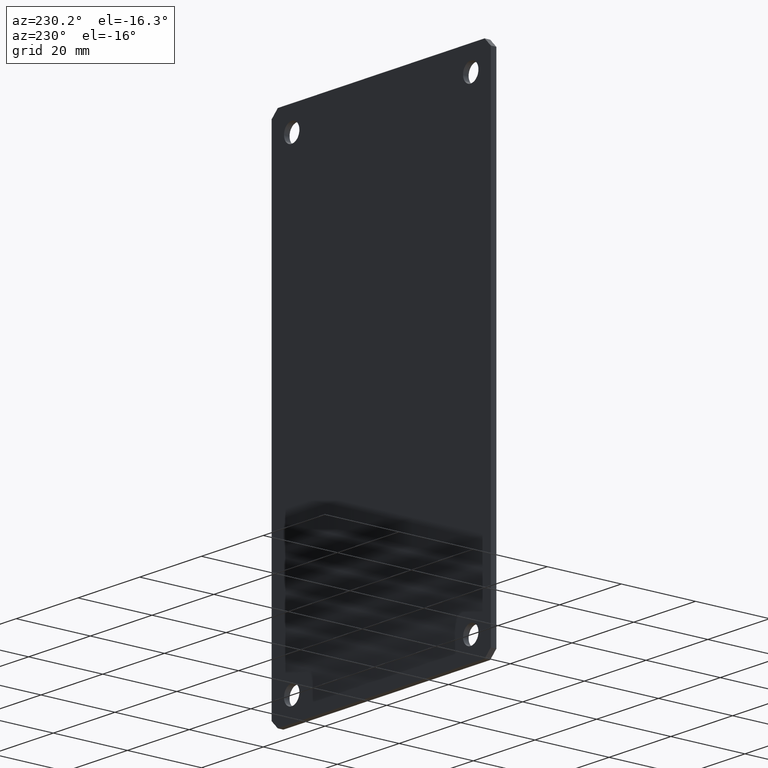
[diagram: clean part render]
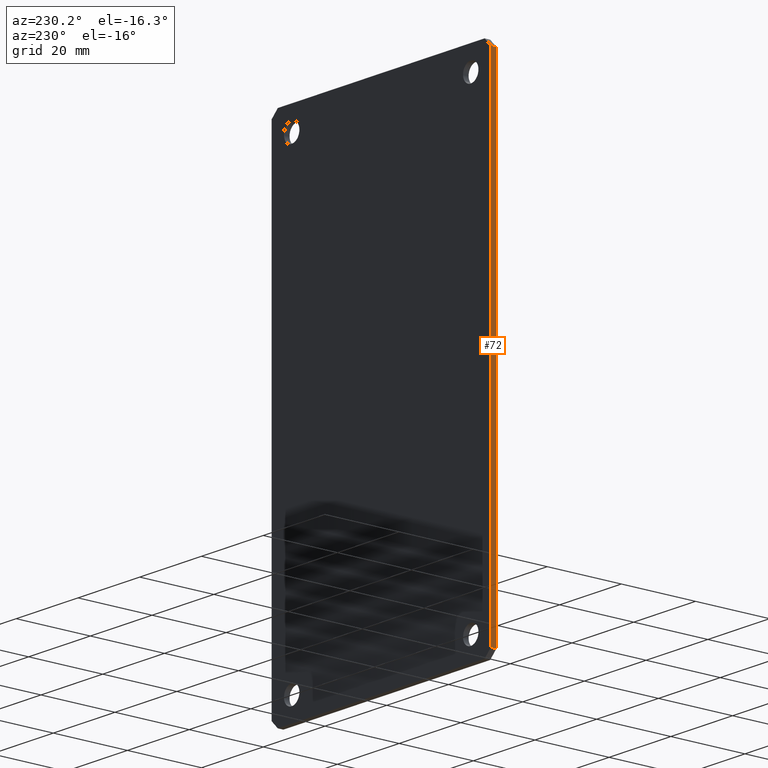
[diagram: same view with one face highlighted and labeled with its STEP entity id]
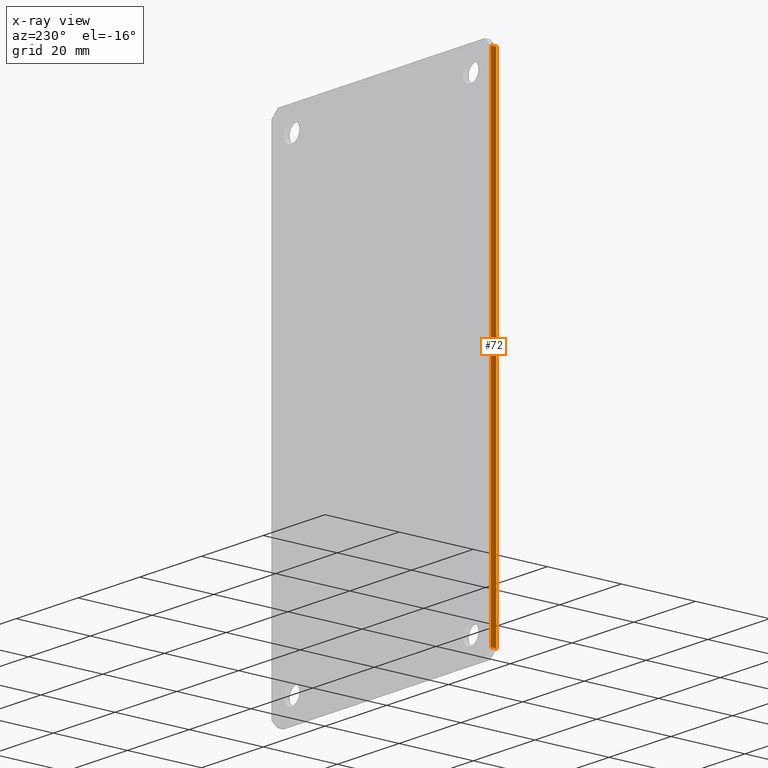
[diagram: x-ray of the same camera — body ghosted, the highlighted face saturated]
A machine part, auxiliary view. The second image highlights one B-rep face of the part: STEP entity #72.
The next image is the same camera in x-ray: the body ghosted, the highlighted face saturated — about 0% of this face is hidden behind the body in this view.
In plain terms, the highlighted planar face has unit normal (1, -0, 0).
Its self-contained STEP definition (entity closure, byte-faithful):
#5 = VERTEX_POINT ( 'NONE', #231 ) ;
#50 = VERTEX_POINT ( 'NONE', #329 ) ;
#63 = EDGE_CURVE ( 'NONE', #113, #5, #260, .T. ) ;
#72 = ADVANCED_FACE ( 'NONE', ( #435 ), #411, .F. ) ;
#73 = EDGE_LOOP ( 'NONE', ( #74, #75, #77, #78 ) ) ;
#74 = ORIENTED_EDGE ( 'NONE', *, *, #140, .T. ) ;
#75 = ORIENTED_EDGE ( 'NONE', *, *, #76, .F. ) ;
#76 = EDGE_CURVE ( 'NONE', #116, #50, #409, .T. ) ;
#77 = ORIENTED_EDGE ( 'NONE', *, *, #115, .F. ) ;
#78 = ORIENTED_EDGE ( 'NONE', *, *, #63, .T. ) ;
#113 = VERTEX_POINT ( 'NONE', #424 ) ;
#115 = EDGE_CURVE ( 'NONE', #113, #116, #348, .T. ) ;
#116 = VERTEX_POINT ( 'NONE', #344 ) ;
#140 = EDGE_CURVE ( 'NONE', #5, #50, #595, .T. ) ;
#231 = CARTESIAN_POINT ( 'NONE',  ( -35.49999999999999300, 0.0000000000000000000, -65.00000000000001400 ) ) ;
#257 = DIRECTION ( 'NONE',  ( -0.0000000000000000000, -1.000000000000000000, -0.0000000000000000000 ) ) ;
#258 = VECTOR ( 'NONE', #257, 1000.000000000000000 ) ;
#259 = CARTESIAN_POINT ( 'NONE',  ( -35.49999999999999300, 1.500000000000000000, -65.00000000000001400 ) ) ;
#260 = LINE ( 'NONE', #259, #258 ) ;
#329 = CARTESIAN_POINT ( 'NONE',  ( -35.49999999999999300, 0.0000000000000000000, 65.00000000000001400 ) ) ;
#344 = CARTESIAN_POINT ( 'NONE',  ( -35.49999999999999300, 1.500000000000000000, 65.00000000000001400 ) ) ;
#345 = DIRECTION ( 'NONE',  ( -0.0000000000000000000, -0.0000000000000000000, 1.000000000000000000 ) ) ;
#346 = VECTOR ( 'NONE', #345, 1000.000000000000000 ) ;
#347 = CARTESIAN_POINT ( 'NONE',  ( -35.49999999999999300, 1.500000000000000000, 65.00000000000001400 ) ) ;
#348 = LINE ( 'NONE', #347, #346 ) ;
#372 = DIRECTION ( 'NONE',  ( -0.0000000000000000000, -1.000000000000000000, -0.0000000000000000000 ) ) ;
#376 = DIRECTION ( 'NONE',  ( 0.0000000000000000000, 0.0000000000000000000, -1.000000000000000000 ) ) ;
#377 = DIRECTION ( 'NONE',  ( 1.000000000000000000, -0.0000000000000000000, 0.0000000000000000000 ) ) ;
#378 = VECTOR ( 'NONE', #372, 1000.000000000000000 ) ;
#379 = CARTESIAN_POINT ( 'NONE',  ( -35.49999999999999300, 1.500000000000000000, 65.00000000000001400 ) ) ;
#409 = LINE ( 'NONE', #379, #378 ) ;
#410 = CARTESIAN_POINT ( 'NONE',  ( -35.49999999999999300, 1.500000000000000000, 65.00000000000001400 ) ) ;
#411 = PLANE ( 'NONE',  #412 ) ;
#412 = AXIS2_PLACEMENT_3D ( 'NONE', #410, #377, #376 ) ;
#424 = CARTESIAN_POINT ( 'NONE',  ( -35.49999999999999300, 1.500000000000000000, -65.00000000000001400 ) ) ;
#435 = FACE_OUTER_BOUND ( 'NONE', #73, .T. ) ;
#595 = LINE ( 'NONE', #600, #599 ) ;
#598 = DIRECTION ( 'NONE',  ( -0.0000000000000000000, -0.0000000000000000000, 1.000000000000000000 ) ) ;
#599 = VECTOR ( 'NONE', #598, 1000.000000000000000 ) ;
#600 = CARTESIAN_POINT ( 'NONE',  ( -35.49999999999999300, 0.0000000000000000000, 65.00000000000001400 ) ) ;